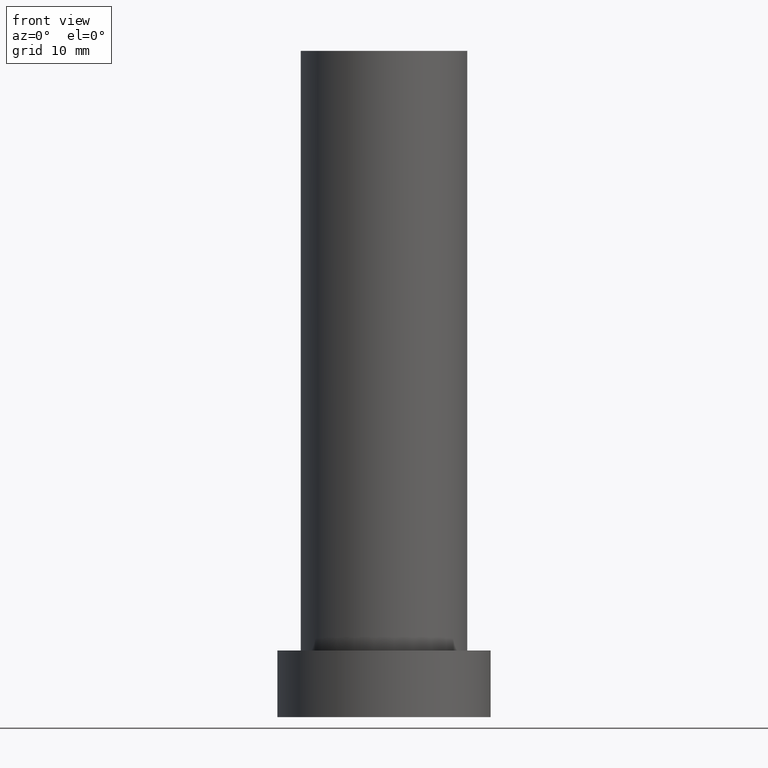
[diagram: clean part render]
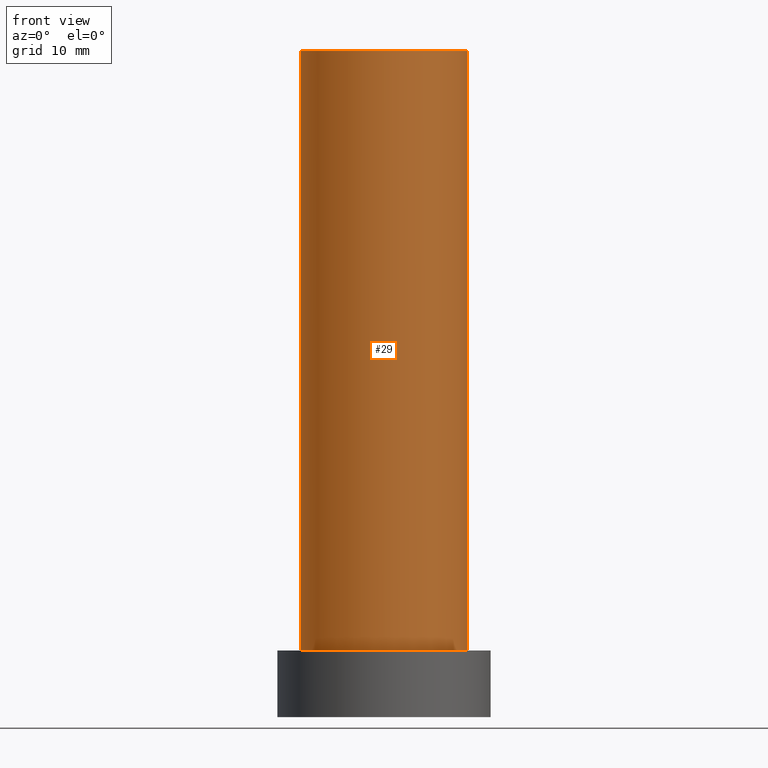
[diagram: same view with one face highlighted and labeled with its STEP entity id]
A machine part, front view. The second image highlights one B-rep face of the part: STEP entity #29.
In plain terms, the highlighted cylindrical surface (partial cylindrical patch) has radius 12.5 mm, axis along (-0, -0, -1).
Its self-contained STEP definition (entity closure, byte-faithful):
#1 = CARTESIAN_POINT ( 'NONE',  ( -12.50000000000000000, 0.000000000000000000, 99.99999999999998579 ) ) ;
#5 = VERTEX_POINT ( 'NONE', #40 ) ;
#6 = VERTEX_POINT ( 'NONE', #191 ) ;
#25 = EDGE_CURVE ( 'NONE', #5, #83, #175, .T. ) ;
#26 = VERTEX_POINT ( 'NONE', #1 ) ;
#29 = ADVANCED_FACE ( 'NONE', ( #135 ), #56, .T. ) ;
#33 = EDGE_CURVE ( 'NONE', #6, #83, #131, .T. ) ;
#40 = CARTESIAN_POINT ( 'NONE',  ( 12.50000000000000000, 1.530808498934191127E-15, 99.99999999999998579 ) ) ;
#41 = DIRECTION ( 'NONE',  ( 1.000000000000000000, 0.000000000000000000, 0.000000000000000000 ) ) ;
#44 = CARTESIAN_POINT ( 'NONE',  ( 12.50000000000000000, 1.530808498934191127E-15, 10.00000000000000000 ) ) ;
#46 = EDGE_CURVE ( 'NONE', #26, #5, #80, .T. ) ;
#56 = CYLINDRICAL_SURFACE ( 'NONE', #243, 12.50000000000000000 ) ;
#57 = DIRECTION ( 'NONE',  ( 0.000000000000000000, 0.000000000000000000, 1.000000000000000000 ) ) ;
#70 = DIRECTION ( 'NONE',  ( -0.000000000000000000, -0.000000000000000000, -1.000000000000000000 ) ) ;
#72 = DIRECTION ( 'NONE',  ( -0.000000000000000000, -0.000000000000000000, -1.000000000000000000 ) ) ;
#80 = CIRCLE ( 'NONE', #227, 12.50000000000000000 ) ;
#83 = VERTEX_POINT ( 'NONE', #44 ) ;
#86 = ORIENTED_EDGE ( 'NONE', *, *, #90, .T. ) ;
#90 = EDGE_CURVE ( 'NONE', #26, #6, #178, .T. ) ;
#98 = AXIS2_PLACEMENT_3D ( 'NONE', #155, #128, #41 ) ;
#101 = CARTESIAN_POINT ( 'NONE',  ( 0.000000000000000000, 0.000000000000000000, 99.99999999999998579 ) ) ;
#105 = ORIENTED_EDGE ( 'NONE', *, *, #25, .F. ) ;
#110 = DIRECTION ( 'NONE',  ( -0.000000000000000000, -0.000000000000000000, -1.000000000000000000 ) ) ;
#111 = VECTOR ( 'NONE', #110, 1000.000000000000000 ) ;
#128 = DIRECTION ( 'NONE',  ( 0.000000000000000000, 0.000000000000000000, 1.000000000000000000 ) ) ;
#131 = CIRCLE ( 'NONE', #98, 12.50000000000000000 ) ;
#135 = FACE_OUTER_BOUND ( 'NONE', #142, .T. ) ;
#138 = ORIENTED_EDGE ( 'NONE', *, *, #33, .T. ) ;
#142 = EDGE_LOOP ( 'NONE', ( #105, #198, #86, #138 ) ) ;
#155 = CARTESIAN_POINT ( 'NONE',  ( 0.000000000000000000, 0.000000000000000000, 10.00000000000000000 ) ) ;
#173 = CARTESIAN_POINT ( 'NONE',  ( 12.50000000000000000, 1.530808498934191127E-15, 99.99999999999998579 ) ) ;
#175 = LINE ( 'NONE', #173, #184 ) ;
#178 = LINE ( 'NONE', #233, #111 ) ;
#184 = VECTOR ( 'NONE', #72, 1000.000000000000000 ) ;
#191 = CARTESIAN_POINT ( 'NONE',  ( -12.50000000000000000, 0.000000000000000000, 10.00000000000000000 ) ) ;
#198 = ORIENTED_EDGE ( 'NONE', *, *, #46, .F. ) ;
#209 = DIRECTION ( 'NONE',  ( 1.000000000000000000, 0.000000000000000000, 0.000000000000000000 ) ) ;
#227 = AXIS2_PLACEMENT_3D ( 'NONE', #238, #57, #209 ) ;
#233 = CARTESIAN_POINT ( 'NONE',  ( -12.50000000000000000, 0.000000000000000000, 99.99999999999998579 ) ) ;
#234 = DIRECTION ( 'NONE',  ( -1.000000000000000000, 0.000000000000000000, 0.000000000000000000 ) ) ;
#238 = CARTESIAN_POINT ( 'NONE',  ( 0.000000000000000000, 0.000000000000000000, 99.99999999999998579 ) ) ;
#243 = AXIS2_PLACEMENT_3D ( 'NONE', #101, #70, #234 ) ;